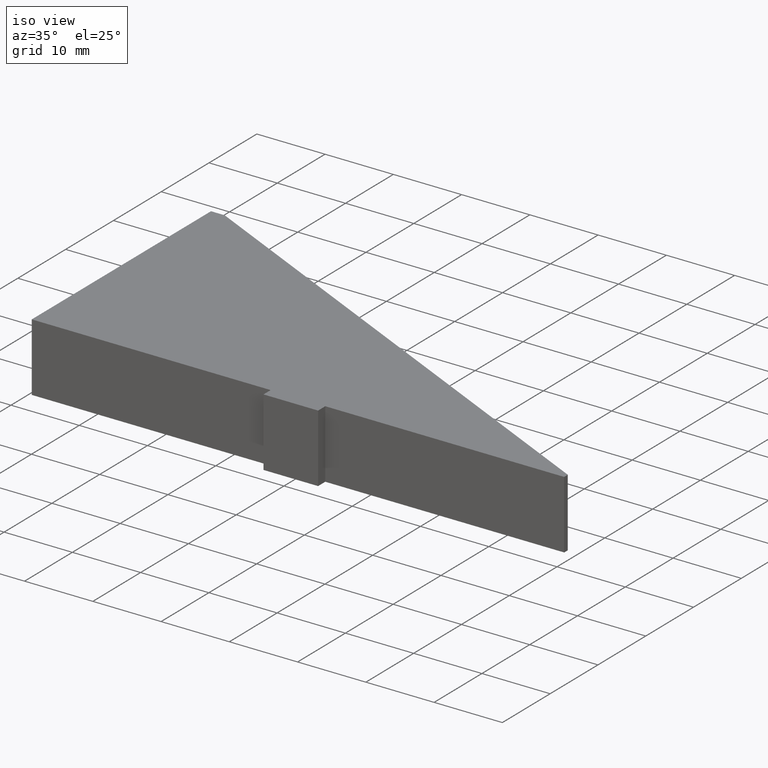
[diagram: clean part render]
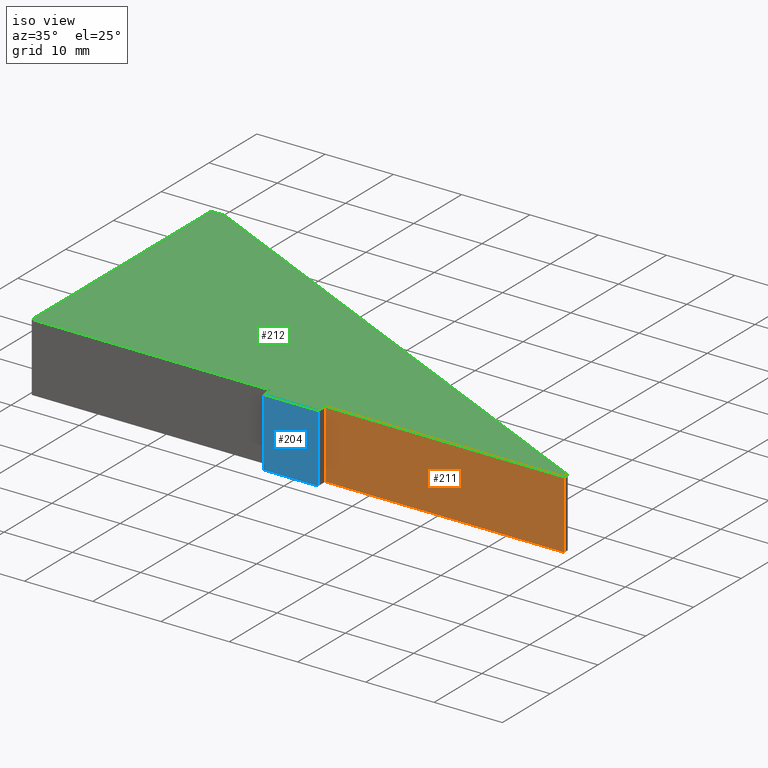
[diagram: same view with three faces highlighted in distinct colors, each labeled with its STEP entity id]
A machine part, iso view with three faces highlighted in distinct colors.
Their STEP definitions:

[orange] entity #211 — the highlighted planar face has unit normal (0, -1, 0).
#25=FACE_OUTER_BOUND('',#36,.T.);
#36=EDGE_LOOP('',(#178,#179,#180,#181));
#39=LINE('',#304,#66);
#49=LINE('',#323,#76);
#63=LINE('',#351,#90);
#64=LINE('',#353,#91);
#66=VECTOR('',#252,10.);
#76=VECTOR('',#264,10.);
#90=VECTOR('',#292,10.);
#91=VECTOR('',#295,10.);
#92=VERTEX_POINT('',#300);
#94=VERTEX_POINT('',#303);
#101=VERTEX_POINT('',#319);
#109=VERTEX_POINT('',#349);
#111=EDGE_CURVE('',#94,#92,#39,.T.);
#121=EDGE_CURVE('',#101,#94,#49,.T.);
#135=EDGE_CURVE('',#92,#109,#63,.T.);
#136=EDGE_CURVE('',#109,#101,#64,.T.);
#178=ORIENTED_EDGE('',*,*,#136,.T.);
#179=ORIENTED_EDGE('',*,*,#121,.T.);
#180=ORIENTED_EDGE('',*,*,#111,.T.);
#181=ORIENTED_EDGE('',*,*,#135,.T.);
#200=PLANE('',#245);
#211=ADVANCED_FACE('',(#25),#200,.T.);
#245=AXIS2_PLACEMENT_3D('',#352,#293,#294);
#252=DIRECTION('',(1.,1.26882631385732E-16,0.));
#264=DIRECTION('',(0.,0.,-1.));
#292=DIRECTION('',(0.,0.,1.));
#293=DIRECTION('center_axis',(1.26882631385732E-16,-1.,0.));
#294=DIRECTION('ref_axis',(0.,0.,-1.));
#295=DIRECTION('',(-1.,-1.26882631385732E-16,0.));
#300=CARTESIAN_POINT('',(1.28633613641181E-15,1.5,-5.));
#303=CARTESIAN_POINT('',(-35.,1.5,-5.));
#304=CARTESIAN_POINT('',(1.28633613641181E-15,1.5,-5.));
#319=CARTESIAN_POINT('',(-35.,1.5,5.));
#323=CARTESIAN_POINT('',(-35.,1.5,0.));
#349=CARTESIAN_POINT('',(1.28633613641181E-15,1.5,5.));
#351=CARTESIAN_POINT('',(1.28633613641181E-15,1.5,0.));
#352=CARTESIAN_POINT('Origin',(1.28633613641181E-15,1.5,0.));
#353=CARTESIAN_POINT('',(1.28633613641181E-15,1.5,5.));

[blue] entity #204 — the highlighted planar face has unit normal (0, -1, 0).
#18=FACE_OUTER_BOUND('',#29,.T.);
#29=EDGE_LOOP('',(#150,#151,#152,#153));
#41=LINE('',#308,#68);
#48=LINE('',#322,#75);
#50=LINE('',#326,#77);
#51=LINE('',#327,#78);
#68=VECTOR('',#254,10.);
#75=VECTOR('',#263,10.);
#77=VECTOR('',#267,10.);
#78=VECTOR('',#268,10.);
#95=VERTEX_POINT('',#305);
#96=VERTEX_POINT('',#307);
#102=VERTEX_POINT('',#320);
#103=VERTEX_POINT('',#325);
#113=EDGE_CURVE('',#96,#95,#41,.T.);
#120=EDGE_CURVE('',#102,#95,#48,.T.);
#122=EDGE_CURVE('',#102,#103,#50,.T.);
#123=EDGE_CURVE('',#103,#96,#51,.T.);
#150=ORIENTED_EDGE('',*,*,#122,.T.);
#151=ORIENTED_EDGE('',*,*,#123,.T.);
#152=ORIENTED_EDGE('',*,*,#113,.T.);
#153=ORIENTED_EDGE('',*,*,#120,.F.);
#193=PLANE('',#238);
#204=ADVANCED_FACE('',(#18),#193,.T.);
#238=AXIS2_PLACEMENT_3D('',#324,#265,#266);
#254=DIRECTION('',(1.,1.23875263402892E-16,0.));
#263=DIRECTION('',(0.,0.,-1.));
#265=DIRECTION('center_axis',(1.23875263402892E-16,-1.,0.));
#266=DIRECTION('ref_axis',(0.,0.,-1.));
#267=DIRECTION('',(-1.,-1.23875263402892E-16,0.));
#268=DIRECTION('',(0.,0.,-1.));
#305=CARTESIAN_POINT('',(-35.,-5.35554551636452E-16,-5.));
#307=CARTESIAN_POINT('',(-43.,-1.52655665885959E-15,-5.));
#308=CARTESIAN_POINT('',(-35.,-5.35554551636452E-16,-5.));
#320=CARTESIAN_POINT('',(-35.,-5.35554551636452E-16,5.));
#322=CARTESIAN_POINT('',(-35.,-5.35554551636452E-16,0.));
#324=CARTESIAN_POINT('Origin',(-35.,-5.35554551636452E-16,0.));
#325=CARTESIAN_POINT('',(-43.,-1.52655665885959E-15,5.));
#326=CARTESIAN_POINT('',(-35.,-5.35554551636452E-16,5.));
#327=CARTESIAN_POINT('',(-43.,-1.52655665885959E-15,0.));

[green] entity #212 — the highlighted planar face has unit normal (0, 0, 1).
#26=FACE_OUTER_BOUND('',#37,.T.);
#37=EDGE_LOOP('',(#182,#183,#184,#185,#186,#187,#188,#189,#190));
#47=LINE('',#321,#74);
#50=LINE('',#326,#77);
#52=LINE('',#330,#79);
#54=LINE('',#334,#81);
#56=LINE('',#338,#83);
#58=LINE('',#342,#85);
#60=LINE('',#346,#87);
#62=LINE('',#350,#89);
#64=LINE('',#353,#91);
#74=VECTOR('',#262,10.);
#77=VECTOR('',#267,10.);
#79=VECTOR('',#271,10.);
#81=VECTOR('',#275,10.);
#83=VECTOR('',#279,10.);
#85=VECTOR('',#283,10.);
#87=VECTOR('',#287,10.);
#89=VECTOR('',#291,10.);
#91=VECTOR('',#295,10.);
#101=VERTEX_POINT('',#319);
#102=VERTEX_POINT('',#320);
#103=VERTEX_POINT('',#325);
#104=VERTEX_POINT('',#329);
#105=VERTEX_POINT('',#333);
#106=VERTEX_POINT('',#337);
#107=VERTEX_POINT('',#341);
#108=VERTEX_POINT('',#345);
#109=VERTEX_POINT('',#349);
#119=EDGE_CURVE('',#101,#102,#47,.T.);
#122=EDGE_CURVE('',#102,#103,#50,.T.);
#124=EDGE_CURVE('',#103,#104,#52,.T.);
#126=EDGE_CURVE('',#104,#105,#54,.T.);
#128=EDGE_CURVE('',#105,#106,#56,.T.);
#130=EDGE_CURVE('',#106,#107,#58,.T.);
#132=EDGE_CURVE('',#107,#108,#60,.T.);
#134=EDGE_CURVE('',#108,#109,#62,.T.);
#136=EDGE_CURVE('',#109,#101,#64,.T.);
#182=ORIENTED_EDGE('',*,*,#119,.F.);
#183=ORIENTED_EDGE('',*,*,#136,.F.);
#184=ORIENTED_EDGE('',*,*,#134,.F.);
#185=ORIENTED_EDGE('',*,*,#132,.F.);
#186=ORIENTED_EDGE('',*,*,#130,.F.);
#187=ORIENTED_EDGE('',*,*,#128,.F.);
#188=ORIENTED_EDGE('',*,*,#126,.F.);
#189=ORIENTED_EDGE('',*,*,#124,.F.);
#190=ORIENTED_EDGE('',*,*,#122,.F.);
#201=PLANE('',#246);
#212=ADVANCED_FACE('',(#26),#201,.T.);
#246=AXIS2_PLACEMENT_3D('',#354,#296,#297);
#262=DIRECTION('',(0.,-1.,0.));
#267=DIRECTION('',(-1.,-1.23875263402892E-16,0.));
#271=DIRECTION('',(0.,1.,0.));
#275=DIRECTION('',(-1.,-1.26882631385732E-16,0.));
#279=DIRECTION('',(-4.736951571734E-16,1.,0.));
#283=DIRECTION('',(1.,0.,0.));
#287=DIRECTION('',(0.900318771402194,-0.435231099372327,0.));
#291=DIRECTION('',(1.41833683225905E-15,-1.,0.));
#295=DIRECTION('',(-1.,-1.26882631385732E-16,0.));
#296=DIRECTION('center_axis',(0.,0.,1.));
#297=DIRECTION('ref_axis',(1.,0.,0.));
#319=CARTESIAN_POINT('',(-35.,1.5,5.));
#320=CARTESIAN_POINT('',(-35.,-5.35554551636452E-16,5.));
#321=CARTESIAN_POINT('',(-35.,1.5,5.));
#325=CARTESIAN_POINT('',(-43.,-1.52655665885959E-15,5.));
#326=CARTESIAN_POINT('',(-35.,-5.35554551636452E-16,5.));
#329=CARTESIAN_POINT('',(-43.,1.5,5.));
#330=CARTESIAN_POINT('',(-43.,-1.52655665885959E-15,5.));
#333=CARTESIAN_POINT('',(-78.,1.49999999999999,5.));
#334=CARTESIAN_POINT('',(-43.,1.5,5.));
#337=CARTESIAN_POINT('',(-78.,39.,5.));
#338=CARTESIAN_POINT('',(-78.,1.49999999999999,5.));
#341=CARTESIAN_POINT('',(-76.,39.,5.));
#342=CARTESIAN_POINT('',(-78.,39.,5.));
#345=CARTESIAN_POINT('',(2.08166817117217E-16,2.26016450731054,5.));
#346=CARTESIAN_POINT('',(-76.,39.,5.));
#349=CARTESIAN_POINT('',(1.28633613641181E-15,1.5,5.));
#350=CARTESIAN_POINT('',(2.08166817117217E-16,2.26016450731054,5.));
#353=CARTESIAN_POINT('',(1.28633613641181E-15,1.5,5.));
#354=CARTESIAN_POINT('Origin',(-45.9256888108539,13.0669112876008,5.));